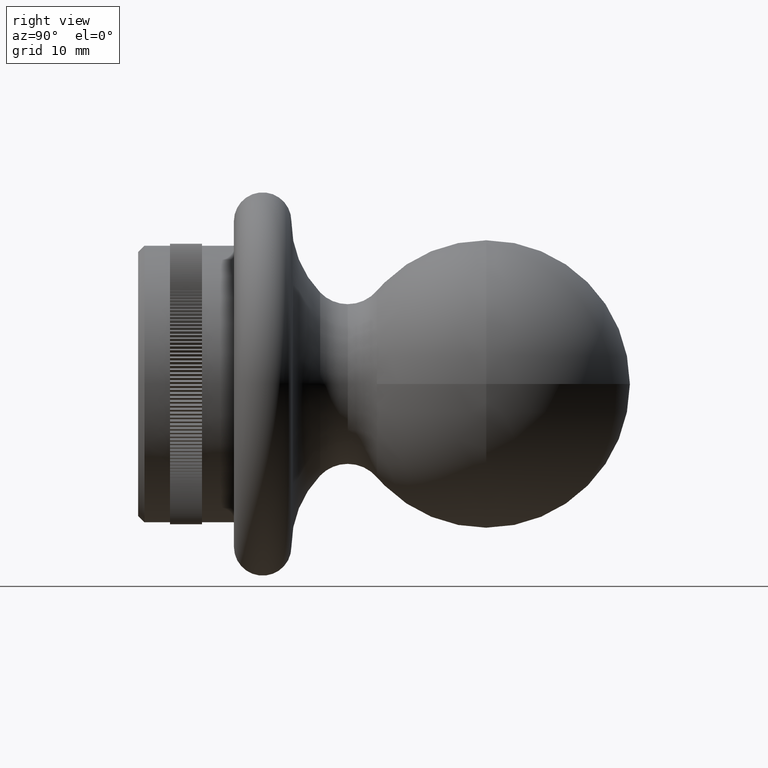
[diagram: clean part render]
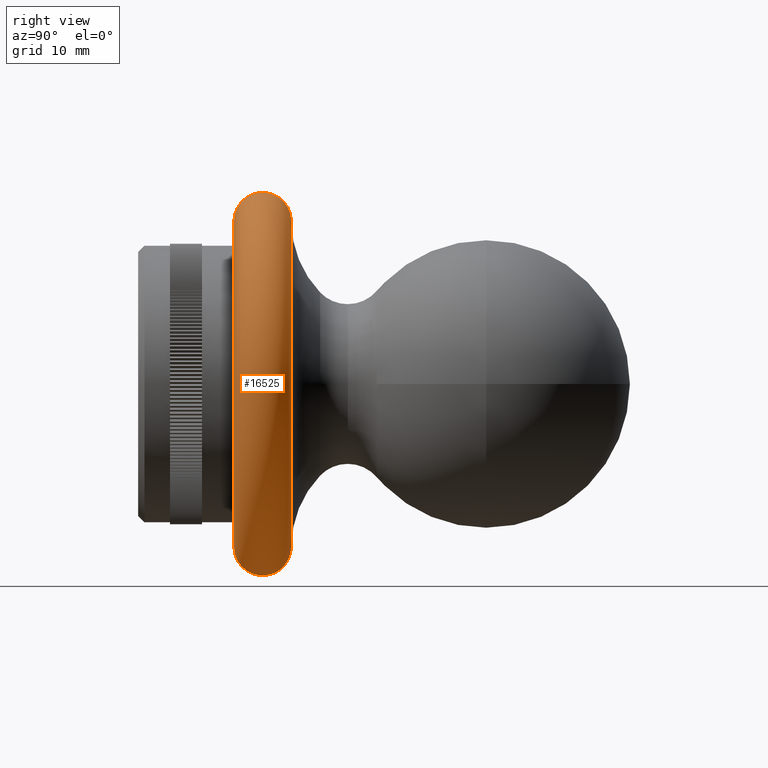
[diagram: same view with one face highlighted and labeled with its STEP entity id]
A machine part, right view. The second image highlights one B-rep face of the part: STEP entity #16525.
In plain terms, the highlighted toroidal blend (fillet) surface has major radius 25.5 mm and minor (blend) radius 4.5 mm.
Its self-contained STEP definition (entity closure, byte-faithful):
#272 = ORIENTED_EDGE ( 'NONE', *, *, #1344, .F. ) ;
#1344 = EDGE_CURVE ( 'NONE', #5022, #10919, #24631, .T. ) ;
#1480 = CARTESIAN_POINT ( 'NONE',  ( 3.122849337825750222E-15, 4.499999999999999112, 25.50000000000000000 ) ) ;
#1657 = AXIS2_PLACEMENT_3D ( 'NONE', #1480, #22147, #4470 ) ;
#4470 = DIRECTION ( 'NONE',  ( -1.224646799147352714E-16, 0.000000000000000000, -1.000000000000000000 ) ) ;
#4530 = FACE_OUTER_BOUND ( 'NONE', #22218, .T. ) ;
#5022 = VERTEX_POINT ( 'NONE', #18884 ) ;
#5046 = EDGE_CURVE ( 'NONE', #10919, #38102, #5146, .T. ) ;
#5146 = CIRCLE ( 'NONE', #8353, 25.50000000000000000 ) ;
#8353 = AXIS2_PLACEMENT_3D ( 'NONE', #36671, #12668, #33564 ) ;
#8451 = ORIENTED_EDGE ( 'NONE', *, *, #32793, .T. ) ;
#9939 = CARTESIAN_POINT ( 'NONE',  ( 0.000000000000000000, 0.000000000000000000, -25.50000000000000000 ) ) ;
#10919 = VERTEX_POINT ( 'NONE', #9939 ) ;
#12034 = VERTEX_POINT ( 'NONE', #29319 ) ;
#12668 = DIRECTION ( 'NONE',  ( -0.000000000000000000, -1.000000000000000000, -0.000000000000000000 ) ) ;
#13268 = AXIS2_PLACEMENT_3D ( 'NONE', #24417, #27149, #15342 ) ;
#15342 = DIRECTION ( 'NONE',  ( 0.000000000000000000, 0.000000000000000000, -1.000000000000000000 ) ) ;
#16271 = CARTESIAN_POINT ( 'NONE',  ( 3.122849337825750617E-15, 0.000000000000000000, 25.50000000000000000 ) ) ;
#16525 = ADVANCED_FACE ( 'NONE', ( #4530 ), #26266, .T. ) ;
#18884 = CARTESIAN_POINT ( 'NONE',  ( 0.000000000000000000, 9.000000000000001776, -25.50000000000000355 ) ) ;
#20894 = DIRECTION ( 'NONE',  ( -0.000000000000000000, -1.000000000000000000, -0.000000000000000000 ) ) ;
#22147 = DIRECTION ( 'NONE',  ( 1.000000000000000000, 0.000000000000000000, -1.224646799147353207E-16 ) ) ;
#22218 = EDGE_LOOP ( 'NONE', ( #8451, #30187, #35116, #272 ) ) ;
#24417 = CARTESIAN_POINT ( 'NONE',  ( 0.000000000000000000, 4.499999999999999112, 0.000000000000000000 ) ) ;
#24631 = CIRCLE ( 'NONE', #31355, 4.500000000000000888 ) ;
#24977 = EDGE_CURVE ( 'NONE', #12034, #38102, #27291, .T. ) ;
#25556 = CARTESIAN_POINT ( 'NONE',  ( 0.000000000000000000, 4.499999999999999112, -25.50000000000000000 ) ) ;
#26076 = CIRCLE ( 'NONE', #34317, 25.50000000000000355 ) ;
#26266 = TOROIDAL_SURFACE ( 'NONE', #13268, 25.50000000000000000, 4.499999999999999112 ) ;
#26481 = CARTESIAN_POINT ( 'NONE',  ( 0.000000000000000000, 9.000000000000001776, 0.000000000000000000 ) ) ;
#27149 = DIRECTION ( 'NONE',  ( -0.000000000000000000, -1.000000000000000000, -0.000000000000000000 ) ) ;
#27291 = CIRCLE ( 'NONE', #1657, 4.500000000000000888 ) ;
#29319 = CARTESIAN_POINT ( 'NONE',  ( 3.122849337825751406E-15, 9.000000000000001776, 25.50000000000000711 ) ) ;
#30187 = ORIENTED_EDGE ( 'NONE', *, *, #24977, .T. ) ;
#31355 = AXIS2_PLACEMENT_3D ( 'NONE', #25556, #34769, #34393 ) ;
#32793 = EDGE_CURVE ( 'NONE', #5022, #12034, #26076, .T. ) ;
#32841 = DIRECTION ( 'NONE',  ( 0.000000000000000000, 0.000000000000000000, -1.000000000000000000 ) ) ;
#33564 = DIRECTION ( 'NONE',  ( 0.000000000000000000, 0.000000000000000000, -1.000000000000000000 ) ) ;
#34317 = AXIS2_PLACEMENT_3D ( 'NONE', #26481, #20894, #32841 ) ;
#34393 = DIRECTION ( 'NONE',  ( 0.000000000000000000, 0.000000000000000000, 1.000000000000000000 ) ) ;
#34769 = DIRECTION ( 'NONE',  ( -1.000000000000000000, 0.000000000000000000, 0.000000000000000000 ) ) ;
#35116 = ORIENTED_EDGE ( 'NONE', *, *, #5046, .F. ) ;
#36671 = CARTESIAN_POINT ( 'NONE',  ( 0.000000000000000000, 0.000000000000000000, 0.000000000000000000 ) ) ;
#38102 = VERTEX_POINT ( 'NONE', #16271 ) ;